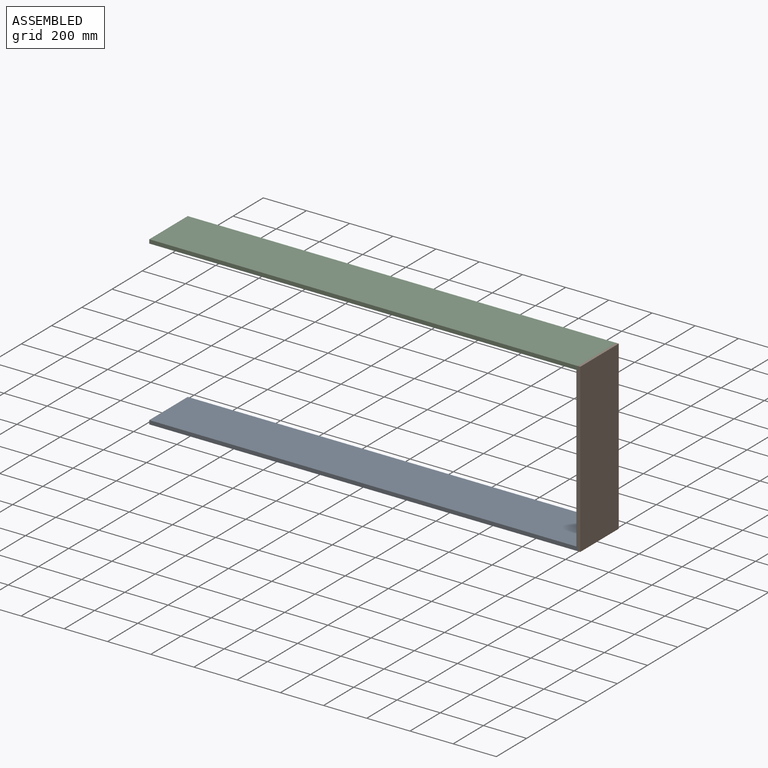
[diagram: assembled view]
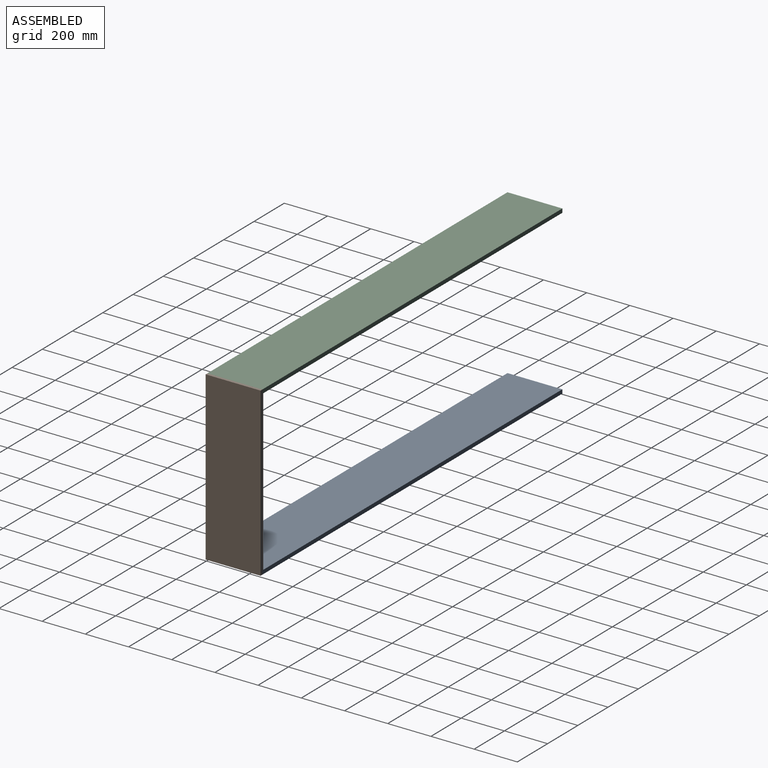
[diagram: assembled view, second angle]
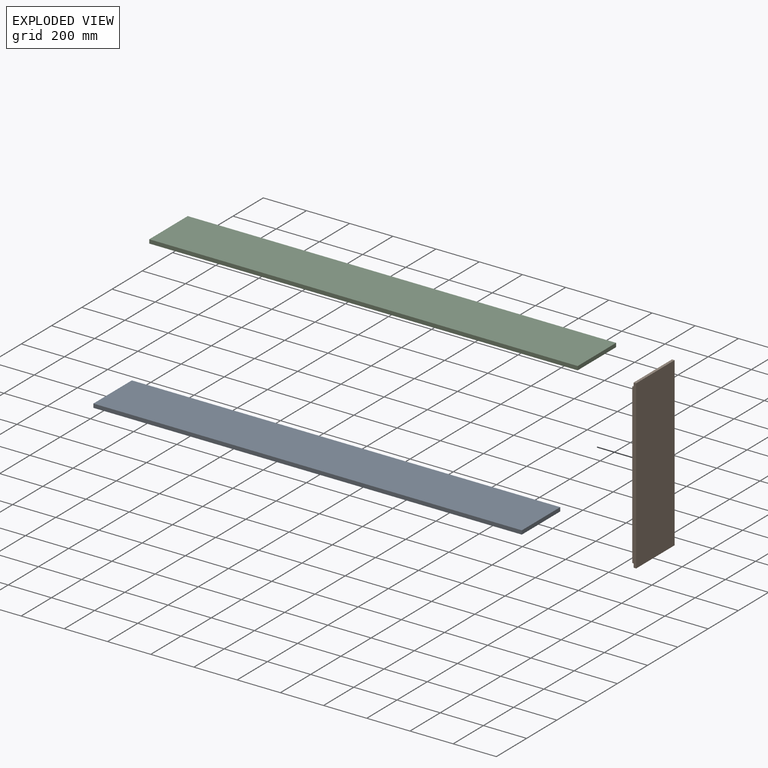
[diagram: exploded view]
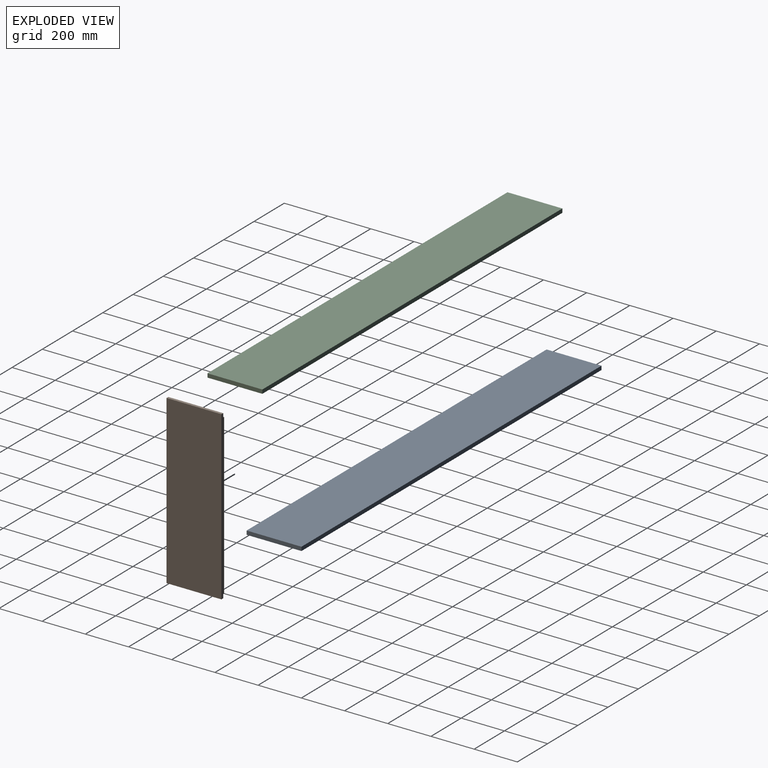
[diagram: exploded view, second angle]
ASSEMBLY  parts=3 mates=2
PART A: 6 faces, bbox 1983.5x254x18 mm
  f0: plane 1983.49x18mm, normal (0,1,0), area 35702.8mm2, adj f1,f3,f4,f5
  f1: plane 254x18mm, normal (-1,0,0), area 4572mm2, adj f0,f2,f4,f5
  f2: plane 1983.49x18mm, normal (0,-1,0), area 35702.8mm2, adj f1,f3,f4,f5
  f3: plane 254x18mm, normal (1,0,0), area 4572mm2, adj f0,f2,f4,f5
  f4: plane 1983.49x254mm, normal (0,0,1), area 503805.8mm2, adj f0,f1,f2,f3
  f5: plane 1983.49x254mm, normal (0,0,-1), area 503805.8mm2, adj f0,f1,f2,f3
PART B: 10 faces, bbox 774.7x254x18 mm
  f0: plane 774.7x18mm, normal (0,1,0), area 13728.6mm2, adj f1,f2,f4,f5,f6,f7,f8,f9
  f1: plane 738.7x254mm, normal (0,0,-1), area 187629.8mm2, adj f0,f3,f6,f8
  f2: plane 254x12mm, normal (-1,0,0), area 3048mm2, adj f0,f3,f5,f9
  f3: plane 774.7x18mm, normal (0,-1,0), area 13728.6mm2, adj f1,f2,f4,f5,f6,f7,f8,f9
  f4: plane 254x12mm, normal (1,0,0), area 3048mm2, adj f0,f3,f5,f7
  f5: plane 774.7x254mm, normal (0,0,1), area 196773.8mm2, adj f0,f2,f3,f4
  f6: plane 254x6mm, normal (1,0,0), area 1524mm2, adj f0,f1,f3,f7
  f7: plane 254x18mm, normal (0,0,-1), area 4572mm2, adj f0,f3,f4,f6
  f8: plane 254x6mm, normal (-1,0,0), area 1524mm2, adj f0,f1,f3,f9
  f9: plane 254x18mm, normal (0,0,-1), area 4572mm2, adj f0,f2,f3,f8
PART C: same geometry as A
PLACE A t=(31.86,-273.55,-186.99)mm
PLACE B rot(axis=(0,1,0),90deg) t=(629.3,-382.03,-843.65)mm
PLACE C t=(31.86,-273.55,569.71)mm
MATE fastened B.f7 <-> A.f3  axis (-1,0,0) through (635.3,-169.9,-168.99)mm
MATE fastened B.f9 <-> C.f3  axis (-1,0,0) through (635.3,-169.9,569.71)mm
